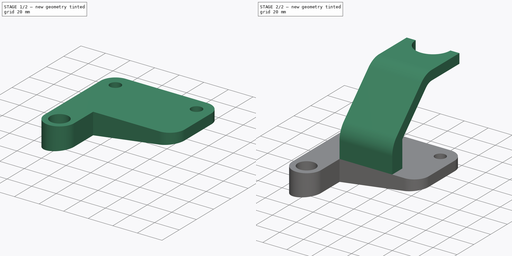
[diagram: build sequence overview — one tinted view per stage of 2, left to right]
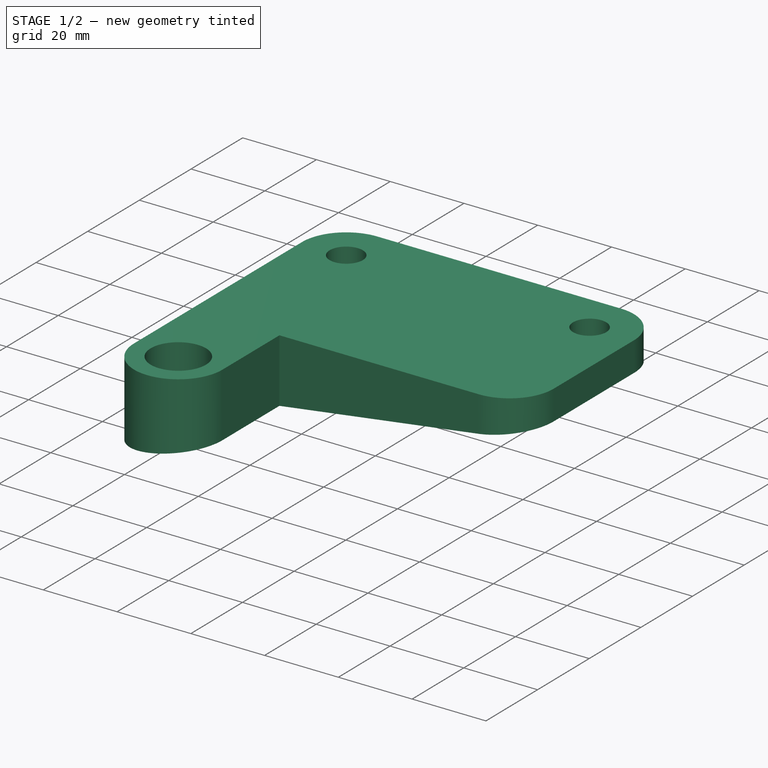
[diagram: stage 1 of 2 — iso view after this stage's code; geometry added in this stage tinted green]
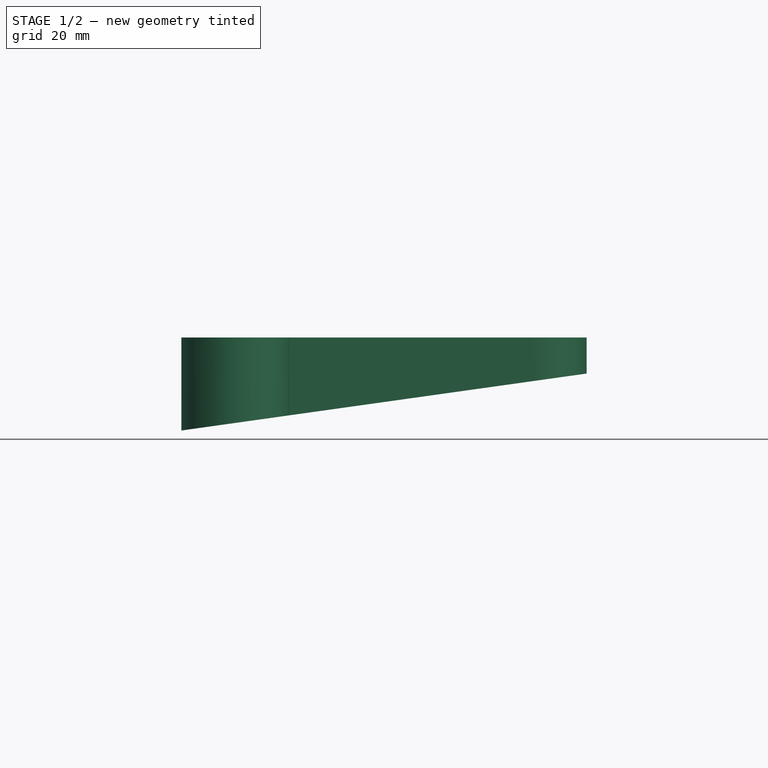
[diagram: stage 1 of 2 — front view after this stage's code; geometry added in this stage tinted green]
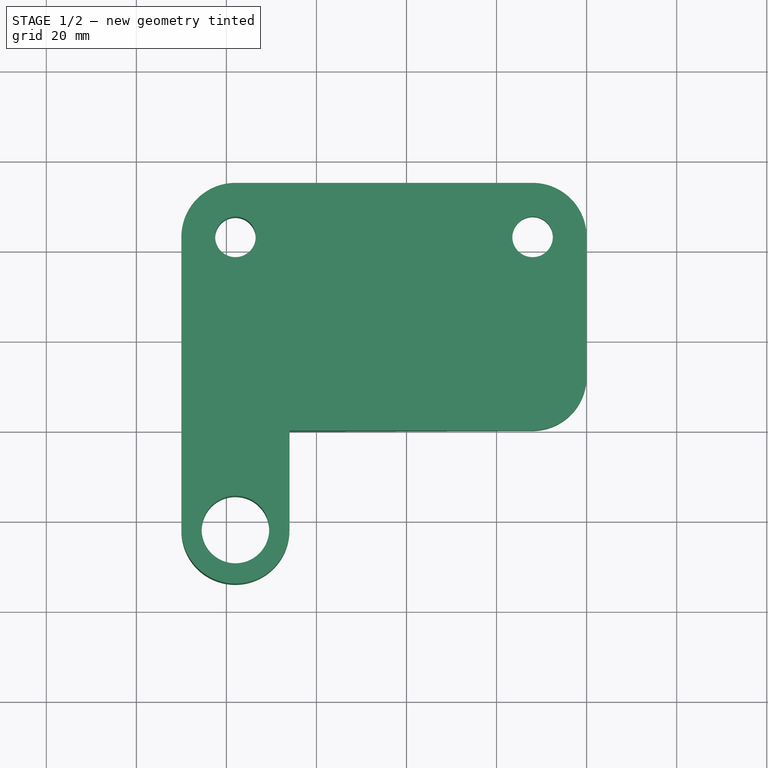
[diagram: stage 1 of 2 — top view after this stage's code; geometry added in this stage tinted green]
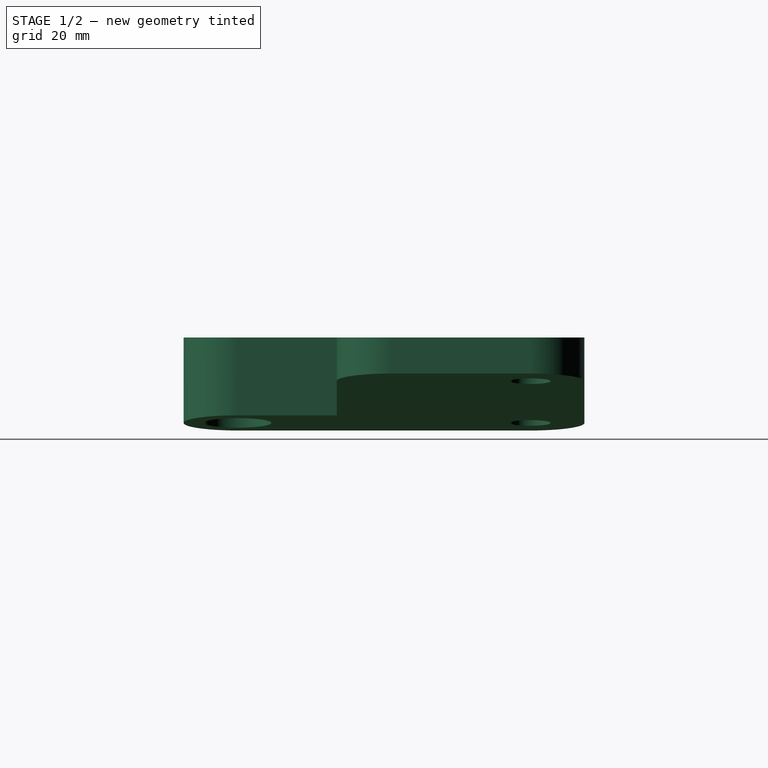
[diagram: stage 1 of 2 — right view after this stage's code; geometry added in this stage tinted green]
FCSTD DOCUMENT  (FreeCAD 1.1R42180 (Git))
Label: 24WC-10-Tapered_Hold
License: Creative Commons Attribution-NonCommercial-ShareAlike 4.0
LicenseURL: https://creativecommons.org/licenses/by-nc-sa/4.0/
objects: Sketcher::SketchObject×3, PartDesign::Pad×3, App::Point×1, Part::DatumPlane×1, PartDesign::Pocket×1, PartDesign::Body×1
note: 19 computed .brp shape members not serialized (recipe doc carries the construction recipe); baked Part::Feature solids carry a one-line shape summary decoded from their .brp

FEATURE [App::Point] Origin001  label="Origine"
  Role = Origin
FEATURE [Sketcher::SketchObject] Sketch
  ArcFitTolerance = 1e-06
  AttachmentSupport = -> [Origin]
  ExternalTypes = [0]
  FullyConstrained = true
  MakeInternals = false
  MapMode = 5
  sketch-geometry (12):
    g0: LineSegment StartX=0 StartY=43 StartZ=0 EndX=0 EndY=12 EndZ=0
    g1: ArcOfCircle CenterX=-12 CenterY=43 CenterZ=0 NormalX=0 NormalY=0 NormalZ=1 AngleXU=0 Radius=12 StartAngle=2e-16 EndAngle=1.5708
    g2: LineSegment StartX=-12 StartY=55 StartZ=0 EndX=-78 EndY=55 EndZ=0
    g3: ArcOfCircle CenterX=-78 CenterY=43 CenterZ=0 NormalX=0 NormalY=0 NormalZ=1 AngleXU=0 Radius=12 StartAngle=1.5708 EndAngle=3.14159
    g4: LineSegment StartX=-90 StartY=43 StartZ=0 EndX=-90 EndY=-22 EndZ=0
    g5: ArcOfCircle CenterX=-78 CenterY=-22 CenterZ=0 NormalX=0 NormalY=0 NormalZ=1 AngleXU=0 Radius=12 StartAngle=3.14159 EndAngle=6.28319
    g6: ArcOfCircle CenterX=-12 CenterY=12 CenterZ=0 NormalX=0 NormalY=0 NormalZ=1 AngleXU=0 Radius=12 StartAngle=4.71239 EndAngle=6.28319
    g7: Circle CenterX=-78 CenterY=43 CenterZ=0 NormalX=0 NormalY=0 NormalZ=1 AngleXU=0 Radius=4.5
    g8: Circle CenterX=-12 CenterY=43 CenterZ=0 NormalX=0 NormalY=0 NormalZ=1 AngleXU=0 Radius=4.5
    g9: Circle CenterX=-78 CenterY=-22 CenterZ=0 NormalX=0 NormalY=0 NormalZ=1 AngleXU=0 Radius=7.5
    g10: LineSegment StartX=-66 StartY=-22 StartZ=0 EndX=-66 EndY=0 EndZ=0
    g11: LineSegment StartX=-66 StartY=0 StartZ=0 EndX=-12 EndY=0 EndZ=0
  constraints (29):
    c: Horizontal(g2)
    c: Tangent(g2,g3) = -1.5708
    c: Tangent(g3,g4) = -1.5708
    c: Tangent(g4,g5) = -1.5708
    c: Vertical(g4)
    c: Radius(g5) = 12
    c: Distance(g5,g2) = 77
    c: Vertical(g0)
    c: Tangent(g6,g0) = 1.5708
    c: Tangent(g0,g1) = 1.5708
    c: Tangent(g1,g2) = -1.5708
    c: Equal(g6,g1)
    c: Equal(g1,g3)
    c: Equal(g3,g5)
    c: DistanceX(g3,g0) = 90
    c: Diameter(g7) = 9
    c: Coincident(g7,g3)
    c: Coincident(g8,g1)
    c: Equal(g8,g7)
    c: Diameter(g9) = 15
    c: Coincident(g9,g5)
    c: PointOnObject(g0,g-2)
    c: PointOnObject(g10,g-1)
    c: Vertical(g10)
    c: Coincident(g11,g10)
    c: Tangent(g11,g6) = -1.5708
    c: PointOnObject(g6,g-1)
    c: Tangent(g10,g5) = -1.5708
    c: Distance(g1,g11) = 55
FEATURE [PartDesign::Pad] Pad
  Direction = (0,0,1)
  Length = 8
  Length2 = 10
  Profile = -> Sketch
  ReferenceAxis = -> Sketch [N_Axis]
  Refine = true
  Suppressed = false
  Type = 0
FEATURE [Part::DatumPlane] DatumPlane
  AttachmentOffset = pos=(0,0,0.01) rot=(0,-1,0;0.139626rad)
  AttachmentSupport = -> [Origin]
  MapMode = 7
  Placement = pos=(0,0,-0.01) rot=(0,1,0;3.00197rad)
FEATURE [PartDesign::Pad] Pad001
  BaseFeature = -> Pad
  Direction = (0,0,-1)
  Length = 10
  Length2 = 10
  Profile = -> Pad [Face13]
  Refine = true
  Suppressed = false
  Type = 3
  UpToFace = -> DatumPlane
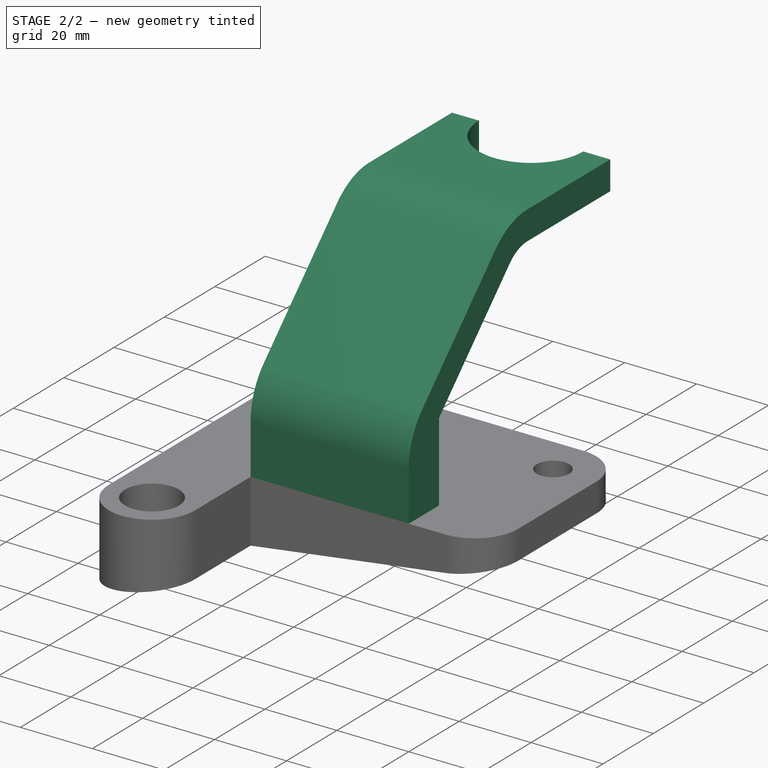
[diagram: stage 2 of 2 — iso view after this stage's code; geometry added in this stage tinted green]
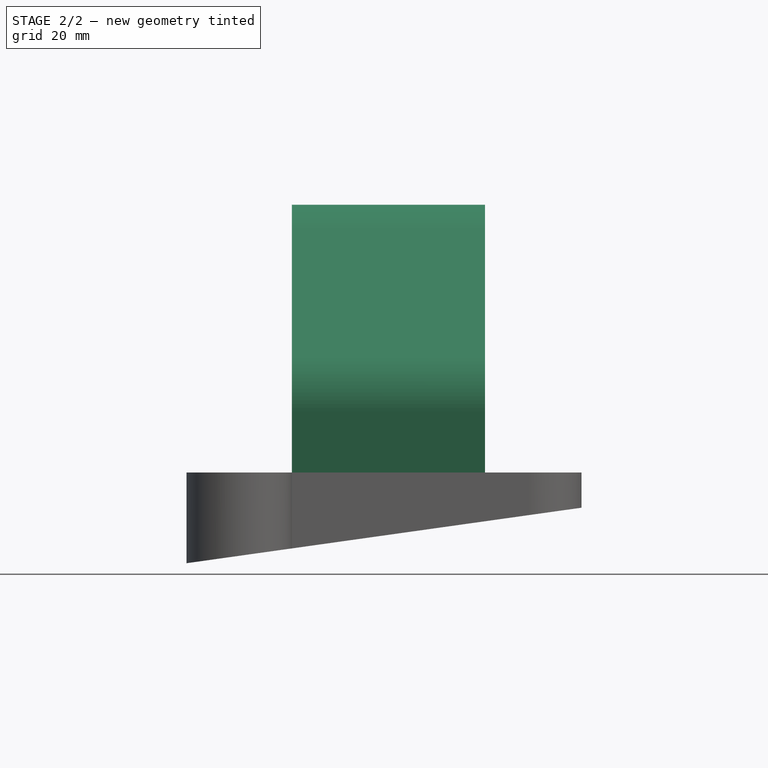
[diagram: stage 2 of 2 — front view after this stage's code; geometry added in this stage tinted green]
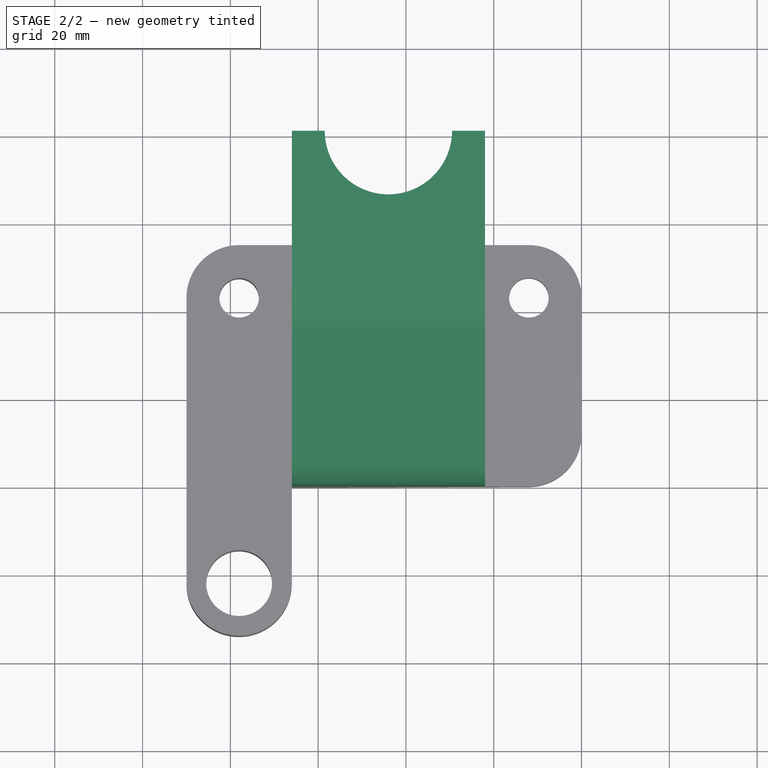
[diagram: stage 2 of 2 — top view after this stage's code; geometry added in this stage tinted green]
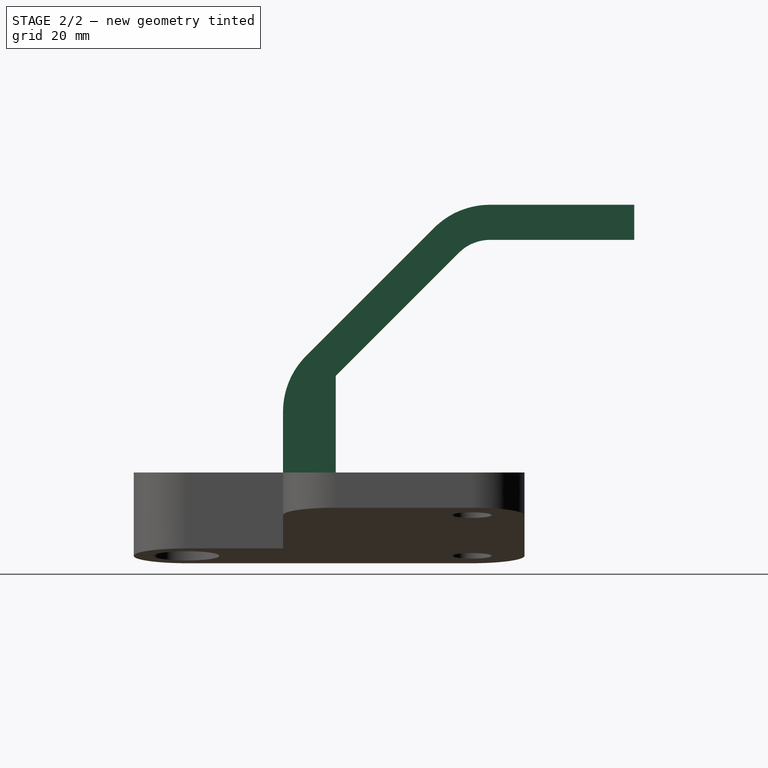
[diagram: stage 2 of 2 — right view after this stage's code; geometry added in this stage tinted green]
FEATURE [Sketcher::SketchObject] Sketch001
  ArcFitTolerance = 1e-06
  AttachmentSupport = -> [Pad001]
  ExternalGeometry = -> [Pad001]
  ExternalTypes = [0,0]
  FullyConstrained = true
  MakeInternals = false
  MapMode = 5
  Placement = pos=(-66,0,0) rot=(0.57735,0.57735,0.57735;2.0944rad)
  sketch-geometry (11):
    g0: LineSegment StartX=0 StartY=8 StartZ=0 EndX=0 EndY=21.8579 EndZ=0
    g1: ArcOfCircle CenterX=18 CenterY=21.8579 CenterZ=0 NormalX=0 NormalY=0 NormalZ=1 AngleXU=0 Radius=18 StartAngle=2.35619 EndAngle=3.14159
    g2: LineSegment StartX=5.27208 StartY=34.5858 StartZ=0 EndX=34.4142 EndY=63.7279 EndZ=0
    g3: ArcOfCircle CenterX=47.1421 CenterY=51 CenterZ=0 NormalX=0 NormalY=0 NormalZ=1 AngleXU=0 Radius=18 StartAngle=1.5708 EndAngle=2.35619
    g4: LineSegment StartX=47.1421 StartY=69 StartZ=0 EndX=80 EndY=69 EndZ=0
    g5: LineSegment StartX=80 StartY=69 StartZ=0 EndX=80 EndY=61 EndZ=0
    g6: LineSegment StartX=80 StartY=61 StartZ=0 EndX=47.1421 EndY=61 EndZ=0
    g7: ArcOfCircle CenterX=47.1421 CenterY=51 CenterZ=0 NormalX=0 NormalY=0 NormalZ=1 AngleXU=0 Radius=10 StartAngle=1.5708 EndAngle=2.35619
    g8: LineSegment StartX=40.0711 StartY=58.0711 StartZ=0 EndX=12 EndY=30 EndZ=0
    g9: LineSegment StartX=12 StartY=30 StartZ=0 EndX=12 EndY=8 EndZ=0
    g10: LineSegment StartX=0 StartY=8 StartZ=0 EndX=12 EndY=8 EndZ=0
  constraints (26):
    c: Coincident(g0,g-3)
    c: PointOnObject(g0,g-2)
    c: Tangent(g0,g1) = 1.5708
    c: Tangent(g1,g2) = 1.5708
    c: Tangent(g2,g3) = 1.5708
    c: Tangent(g3,g4) = 1.5708
    c: Perpendicular(g4,g5) = 4.71239
    c: Perpendicular(g5,g6) = 4.71239
    c: Tangent(g6,g7) = -1.5708
    c: Coincident(g8,g9)
    c: Vertical(g9)
    c: DistanceY(g9,g9) = 22
    c: Distance(g1,g8) = 8
    c: Parallel(g8,g2)
    c: Radius(g1) = 18
    c: Radius(g7) = 10
    c: Coincident(g3,g7)
    c: Tangent(g7,g8) = -1.5708
    c: Horizontal(g6)
    c: Coincident(g10,g0)
    c: Coincident(g10,g9)
    c: Horizontal(g10)
    c: DistanceX(g-4,g5) = 25
    c: Distance(g4,g-1) = 69
    c: Distance(g10,g10) = 12
    c: Angle(g2,g-2) = 0.785398
FEATURE [PartDesign::Pad] Pad002
  BaseFeature = -> Pad001
  Direction = (1,0,0)
  Length = 10
  Length2 = 10
  Offset = 22
  Profile = -> Sketch001
  ReferenceAxis = -> Sketch001 [N_Axis]
  Refine = true
  Suppressed = false
  Type = 3
  UpToFace = -> Pad001 [Face7]
FEATURE [Sketcher::SketchObject] Sketch002
  ArcFitTolerance = 1e-06
  AttachmentSupport = -> [Pad002]
  ExternalGeometry = -> [Pad002]
  ExternalTypes = [0]
  FullyConstrained = true
  MakeInternals = false
  MapMode = 5
  Placement = pos=(0,-2.98e-14,69) rot=(0,0,1;0rad)
  sketch-geometry (1):
    g0: Circle CenterX=-44 CenterY=80 CenterZ=0 NormalX=0 NormalY=0 NormalZ=1 AngleXU=0 Radius=14.5
  constraints (2):
    c: Symmetric(g-3,g-3,g0)
    c: Radius(g0) = 14.5
FEATURE [PartDesign::Pocket] Pocket
  BaseFeature = -> Pad002
  Direction = (0,0,-1)
  Length = 5
  Length2 = 5
  Profile = -> Sketch002
  ReferenceAxis = -> Sketch002 [N_Axis]
  Refine = true
  Suppressed = false
  Type = 1
FEATURE [PartDesign::Body] Body
  AllowCompound = true
  Group = -> [Sketch,Pad,DatumPlane,Pad001,Sketch001,Pad002,Sketch002,Pocket]
  Origin = -> Origin
  Tip = -> Pocket
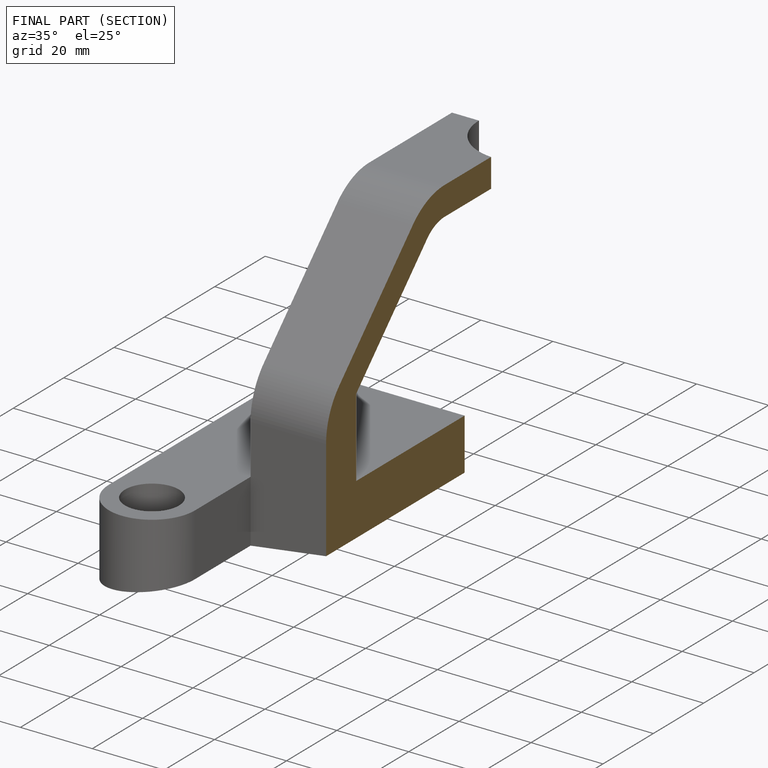
[diagram: finished part — half-section view (interior)]
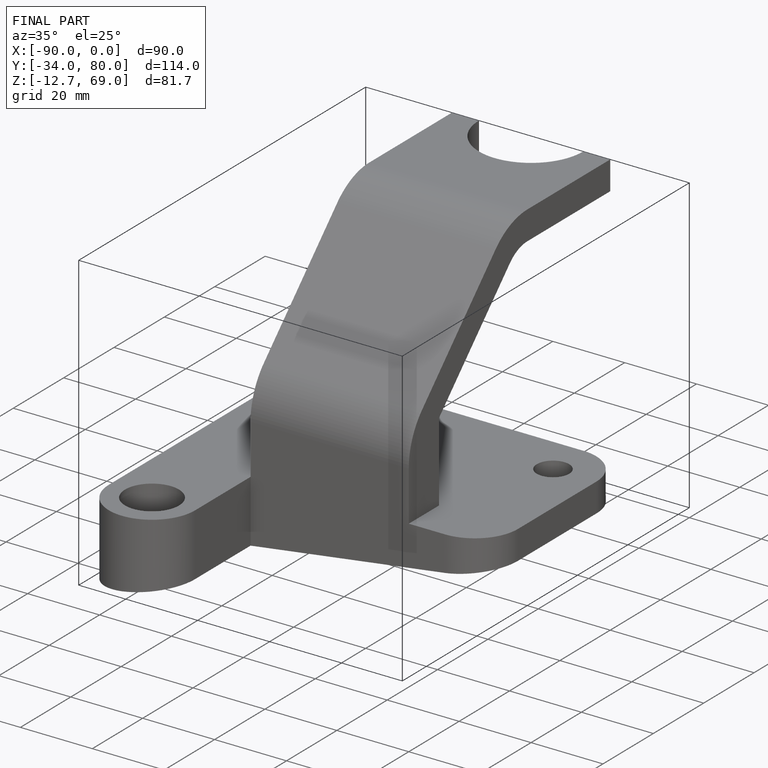
[diagram: finished part — iso view with bounding-box wireframe]
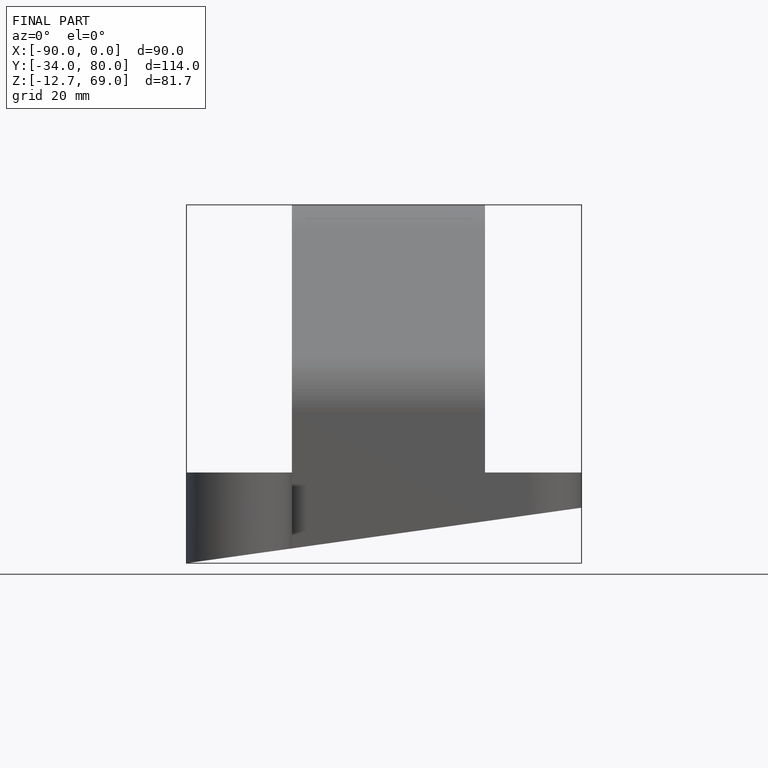
[diagram: finished part — front view with bounding-box wireframe]
